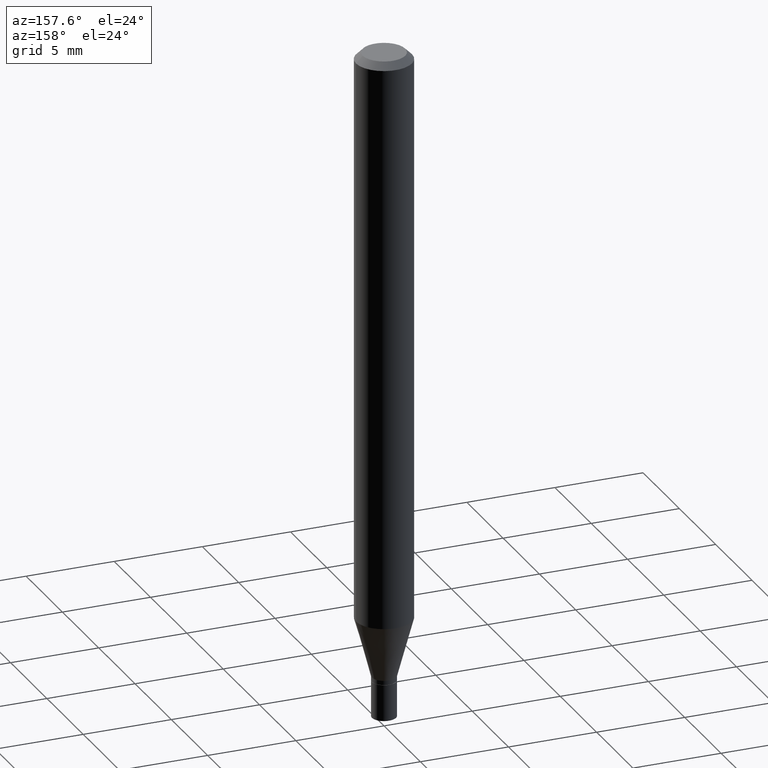
[diagram: clean part render]
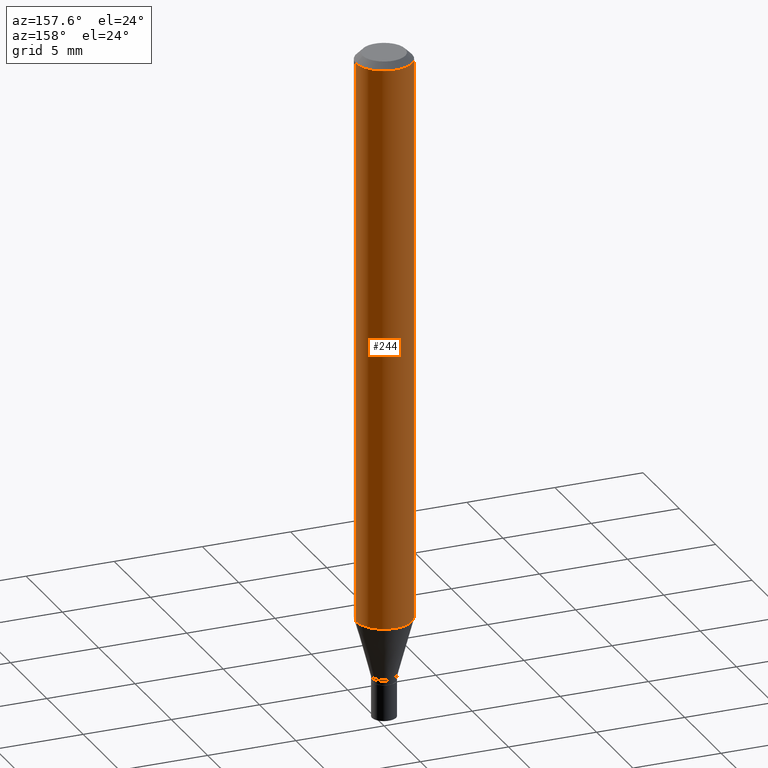
[diagram: same view with one face highlighted and labeled with its STEP entity id]
A machine part, auxiliary view. The second image highlights one B-rep face of the part: STEP entity #244.
In plain terms, the highlighted cylindrical surface (edge-blend (fillet) strip) has radius 1.5875 mm, axis along (-0, 0, 1).
Its self-contained STEP definition (entity closure, byte-faithful):
#18 = CARTESIAN_POINT ( 'NONE',  ( 0.06250000000000000000, -4.364351673553916694E-16, 3.047610484872459871E-30 ) ) ;
#21 = VECTOR ( 'NONE', #410, 39.37007874015748143 ) ;
#33 = CIRCLE ( 'NONE', #358, 0.06250000000000000000 ) ;
#47 = DIRECTION ( 'NONE',  ( -2.445468806185136597E-29, 3.491481338843145583E-15, 1.000000000000000000 ) ) ;
#53 = CARTESIAN_POINT ( 'NONE',  ( -0.06250000000000000000, 4.440892098500626162E-16, -3.074334431409316114E-30 ) ) ;
#55 = DIRECTION ( 'NONE',  ( -2.445468806185136877E-29, 3.491481338843145188E-15, 1.000000000000000000 ) ) ;
#59 = EDGE_LOOP ( 'NONE', ( #261, #417, #141, #166 ) ) ;
#62 = VERTEX_POINT ( 'NONE', #443 ) ;
#77 = DIRECTION ( 'NONE',  ( 1.000000000000000000, -6.982962677686266711E-15, 0.000000000000000000 ) ) ;
#97 = EDGE_CURVE ( 'NONE', #100, #62, #114, .T. ) ;
#100 = VERTEX_POINT ( 'NONE', #221 ) ;
#108 = CARTESIAN_POINT ( 'NONE',  ( 0.000000000000000000, 0.000000000000000000, 0.000000000000000000 ) ) ;
#114 = CIRCLE ( 'NONE', #178, 0.06250000000000000000 ) ;
#123 = LINE ( 'NONE', #18, #21 ) ;
#141 = ORIENTED_EDGE ( 'NONE', *, *, #97, .F. ) ;
#147 = EDGE_CURVE ( 'NONE', #272, #260, #33, .T. ) ;
#166 = ORIENTED_EDGE ( 'NONE', *, *, #393, .F. ) ;
#173 = VECTOR ( 'NONE', #55, 39.37007874015748143 ) ;
#178 = AXIS2_PLACEMENT_3D ( 'NONE', #370, #47, #77 ) ;
#215 = CARTESIAN_POINT ( 'NONE',  ( -0.06250000000000000000, -4.012829302446366033E-15, -1.276512196331304860 ) ) ;
#219 = DIRECTION ( 'NONE',  ( 1.000000000000000000, -6.982962677686262766E-15, 0.000000000000000000 ) ) ;
#221 = CARTESIAN_POINT ( 'NONE',  ( 0.06250000000000000000, -4.888073874380388472E-16, -0.01499999999999999944 ) ) ;
#229 = LINE ( 'NONE', #53, #173 ) ;
#243 = FACE_OUTER_BOUND ( 'NONE', #59, .T. ) ;
#244 = ADVANCED_FACE ( 'NONE', ( #243 ), #391, .T. ) ;
#249 = DIRECTION ( 'NONE',  ( -2.445468806185136597E-29, 3.491481338843145583E-15, 1.000000000000000000 ) ) ;
#260 = VERTEX_POINT ( 'NONE', #215 ) ;
#261 = ORIENTED_EDGE ( 'NONE', *, *, #147, .T. ) ;
#272 = VERTEX_POINT ( 'NONE', #363 ) ;
#288 = DIRECTION ( 'NONE',  ( -2.445468806185136597E-29, 3.491481338843145583E-15, 1.000000000000000000 ) ) ;
#318 = CARTESIAN_POINT ( 'NONE',  ( 3.121670756843082346E-29, -4.456918512296428650E-15, -1.276512196331304860 ) ) ;
#337 = AXIS2_PLACEMENT_3D ( 'NONE', #108, #249, #394 ) ;
#354 = EDGE_CURVE ( 'NONE', #260, #62, #229, .T. ) ;
#358 = AXIS2_PLACEMENT_3D ( 'NONE', #318, #288, #219 ) ;
#363 = CARTESIAN_POINT ( 'NONE',  ( 0.06250000000000000000, -4.893353679651821108E-15, -1.276512196331304860 ) ) ;
#370 = CARTESIAN_POINT ( 'NONE',  ( 3.668203209277705088E-31, -5.237222008264718399E-17, -0.01499999999999999944 ) ) ;
#391 = CYLINDRICAL_SURFACE ( 'NONE', #337, 0.06250000000000000000 ) ;
#393 = EDGE_CURVE ( 'NONE', #272, #100, #123, .T. ) ;
#394 = DIRECTION ( 'NONE',  ( 1.000000000000000000, -6.982962677686266711E-15, 4.876176775795935793E-29 ) ) ;
#410 = DIRECTION ( 'NONE',  ( -2.445468806185136877E-29, 3.491481338843145188E-15, 1.000000000000000000 ) ) ;
#417 = ORIENTED_EDGE ( 'NONE', *, *, #354, .T. ) ;
#443 = CARTESIAN_POINT ( 'NONE',  ( -0.06250000000000000000, -1.810556156339475445E-15, -0.01499999999999999944 ) ) ;